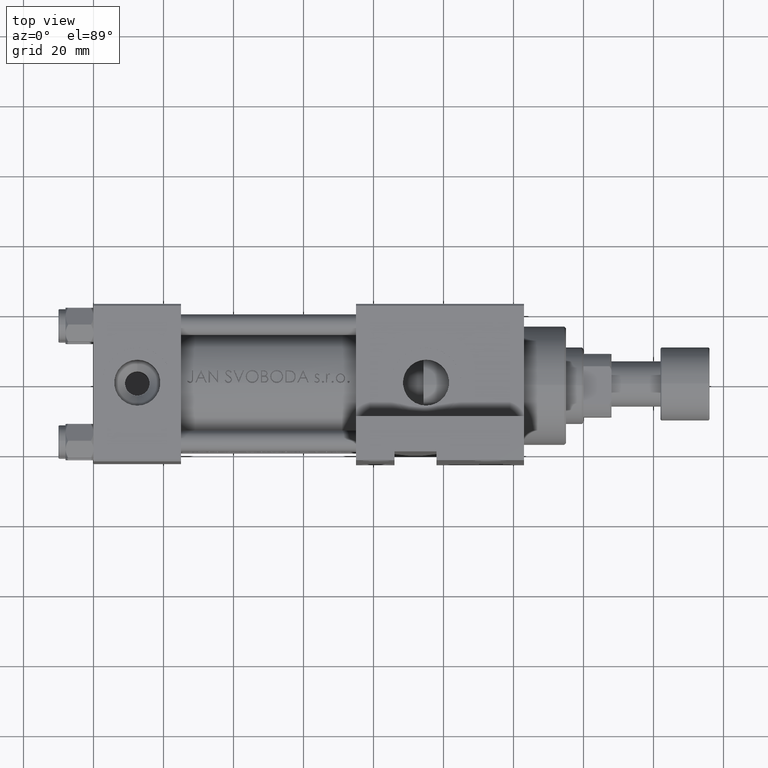
[diagram: clean part render]
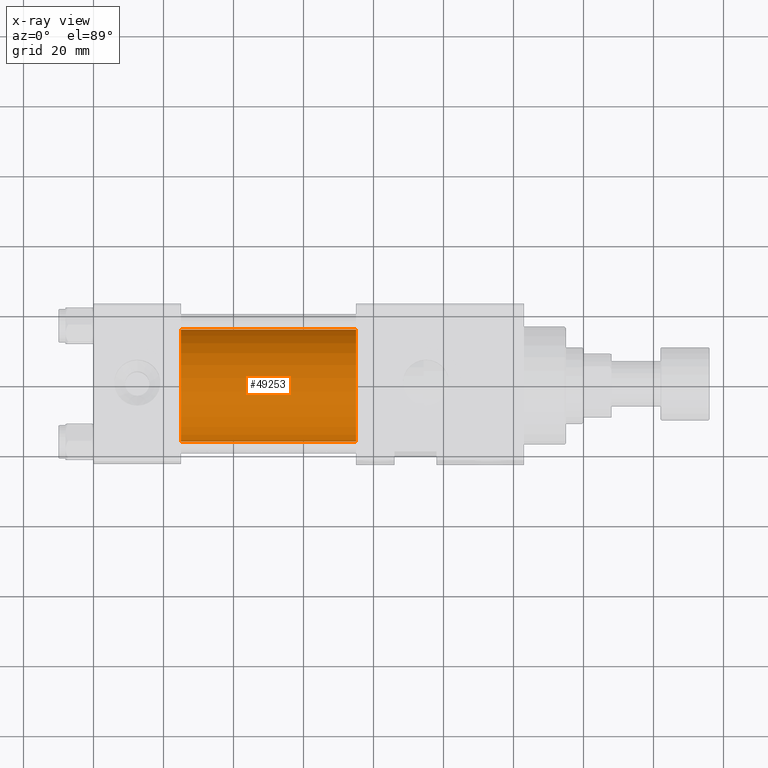
[diagram: x-ray — body ghosted, one internal face saturated and labeled with its STEP entity id]
A machine part, top view, then the same camera in x-ray: the body is ghosted and one INTERNAL B-rep face — a face not visible from any outside direction — is saturated and labeled: STEP entity #49253.
In plain terms, the highlighted cylindrical surface (partial cylindrical patch) has radius 16 mm, axis along (-1, -0, 0).
Its self-contained STEP definition (entity closure, byte-faithful):
#1088 = ORIENTED_EDGE ( 'NONE', *, *, #35481, .T. ) ;
#1390 = CARTESIAN_POINT ( 'NONE',  ( 75.00000000000001421, 6.123233995736727825E-17, -0.4999999999999970024 ) ) ;
#2288 = CARTESIAN_POINT ( 'NONE',  ( 25.00000000000000000, 6.123233995736727825E-17, 15.50000000000000355 ) ) ;
#2967 = CARTESIAN_POINT ( 'NONE',  ( 75.00000000000001421, 2.020667218593132311E-15, -16.49999999999999645 ) ) ;
#6451 = AXIS2_PLACEMENT_3D ( 'NONE', #45038, #10529, #25881 ) ;
#6695 = EDGE_CURVE ( 'NONE', #13584, #10138, #29253, .T. ) ;
#6696 = DIRECTION ( 'NONE',  ( -1.000000000000000000, -0.000000000000000000, -0.000000000000000000 ) ) ;
#10138 = VERTEX_POINT ( 'NONE', #43044 ) ;
#10529 = DIRECTION ( 'NONE',  ( 1.000000000000000000, 0.000000000000000000, 0.000000000000000000 ) ) ;
#10978 = CARTESIAN_POINT ( 'NONE',  ( 75.00000000000001421, 6.123233995736727825E-17, 15.50000000000000355 ) ) ;
#12971 = DIRECTION ( 'NONE',  ( -1.000000000000000000, -0.000000000000000000, -0.000000000000000000 ) ) ;
#13584 = VERTEX_POINT ( 'NONE', #17812 ) ;
#15870 = EDGE_CURVE ( 'NONE', #24119, #30637, #36220, .T. ) ;
#17812 = CARTESIAN_POINT ( 'NONE',  ( 75.00000000000001421, 6.123233995736727825E-17, 15.50000000000000355 ) ) ;
#18180 = CARTESIAN_POINT ( 'NONE',  ( 75.00000000000001421, 6.123233995736727825E-17, -0.4999999999999970024 ) ) ;
#18291 = VECTOR ( 'NONE', #22363, 1000.000000000000000 ) ;
#18418 = EDGE_LOOP ( 'NONE', ( #47567, #1088, #41943, #47395 ) ) ;
#22007 = AXIS2_PLACEMENT_3D ( 'NONE', #18180, #41105, #40862 ) ;
#22189 = VECTOR ( 'NONE', #6696, 1000.000000000000000 ) ;
#22197 = CARTESIAN_POINT ( 'NONE',  ( 25.00000000000000000, 2.020667218593132311E-15, -16.49999999999999645 ) ) ;
#22363 = DIRECTION ( 'NONE',  ( -1.000000000000000000, -0.000000000000000000, -0.000000000000000000 ) ) ;
#22547 = LINE ( 'NONE', #10978, #22189 ) ;
#24119 = VERTEX_POINT ( 'NONE', #2288 ) ;
#24549 = DIRECTION ( 'NONE',  ( 0.000000000000000000, 0.000000000000000000, 1.000000000000000000 ) ) ;
#25881 = DIRECTION ( 'NONE',  ( 0.000000000000000000, 0.000000000000000000, -1.000000000000000000 ) ) ;
#27081 = AXIS2_PLACEMENT_3D ( 'NONE', #1390, #12971, #24549 ) ;
#28100 = FACE_OUTER_BOUND ( 'NONE', #18418, .T. ) ;
#29253 = CIRCLE ( 'NONE', #22007, 16.00000000000000000 ) ;
#30637 = VERTEX_POINT ( 'NONE', #22197 ) ;
#32405 = EDGE_CURVE ( 'NONE', #13584, #24119, #22547, .T. ) ;
#35481 = EDGE_CURVE ( 'NONE', #10138, #30637, #42016, .T. ) ;
#36220 = CIRCLE ( 'NONE', #6451, 16.00000000000000000 ) ;
#40162 = CYLINDRICAL_SURFACE ( 'NONE', #27081, 16.00000000000000000 ) ;
#40862 = DIRECTION ( 'NONE',  ( 0.000000000000000000, 0.000000000000000000, -1.000000000000000000 ) ) ;
#41105 = DIRECTION ( 'NONE',  ( 1.000000000000000000, 0.000000000000000000, 0.000000000000000000 ) ) ;
#41943 = ORIENTED_EDGE ( 'NONE', *, *, #15870, .F. ) ;
#42016 = LINE ( 'NONE', #2967, #18291 ) ;
#43044 = CARTESIAN_POINT ( 'NONE',  ( 75.00000000000001421, 2.020667218593132311E-15, -16.49999999999999645 ) ) ;
#45038 = CARTESIAN_POINT ( 'NONE',  ( 25.00000000000000000, 6.123233995736727825E-17, -0.4999999999999970024 ) ) ;
#47395 = ORIENTED_EDGE ( 'NONE', *, *, #32405, .F. ) ;
#47567 = ORIENTED_EDGE ( 'NONE', *, *, #6695, .T. ) ;
#49253 = ADVANCED_FACE ( 'NONE', ( #28100 ), #40162, .F. ) ;